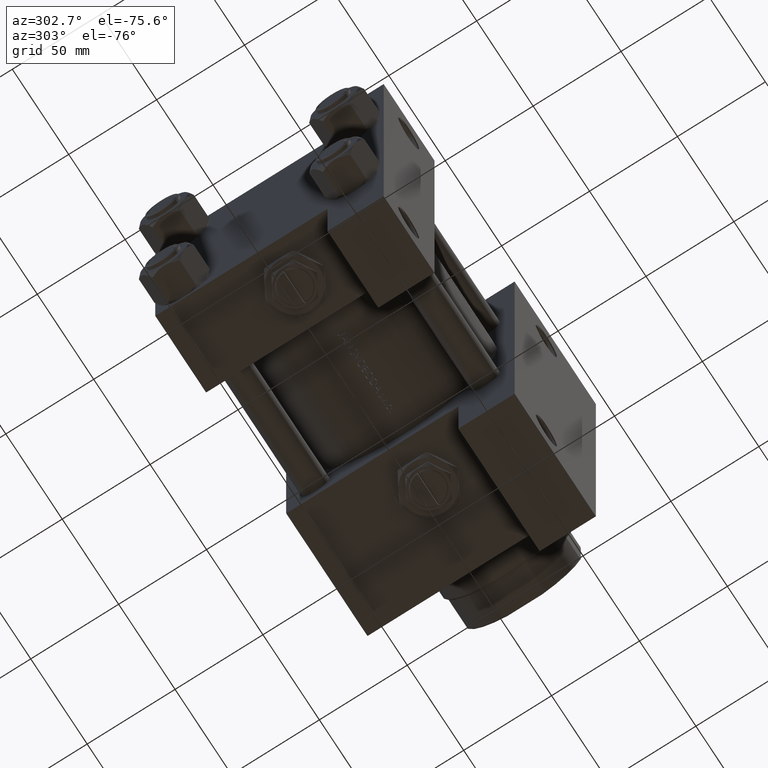
[diagram: clean part render]
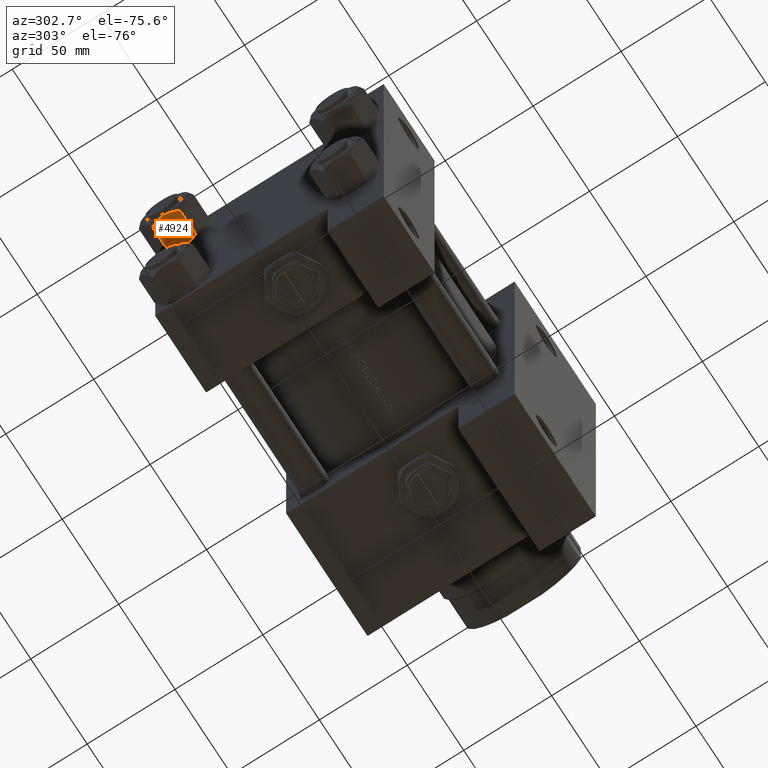
[diagram: same view with one face highlighted and labeled with its STEP entity id]
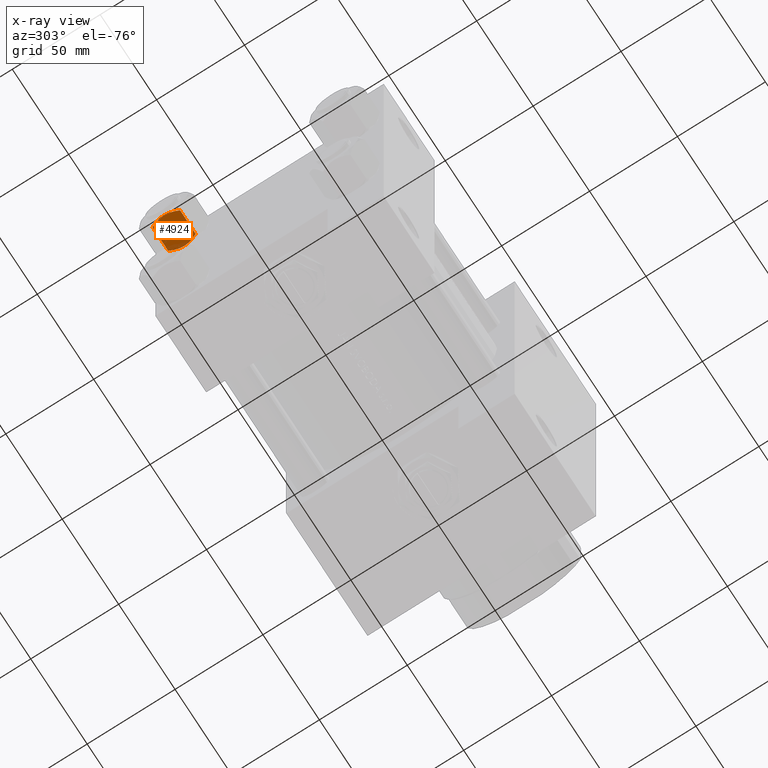
[diagram: x-ray of the same camera — body ghosted, the highlighted face saturated]
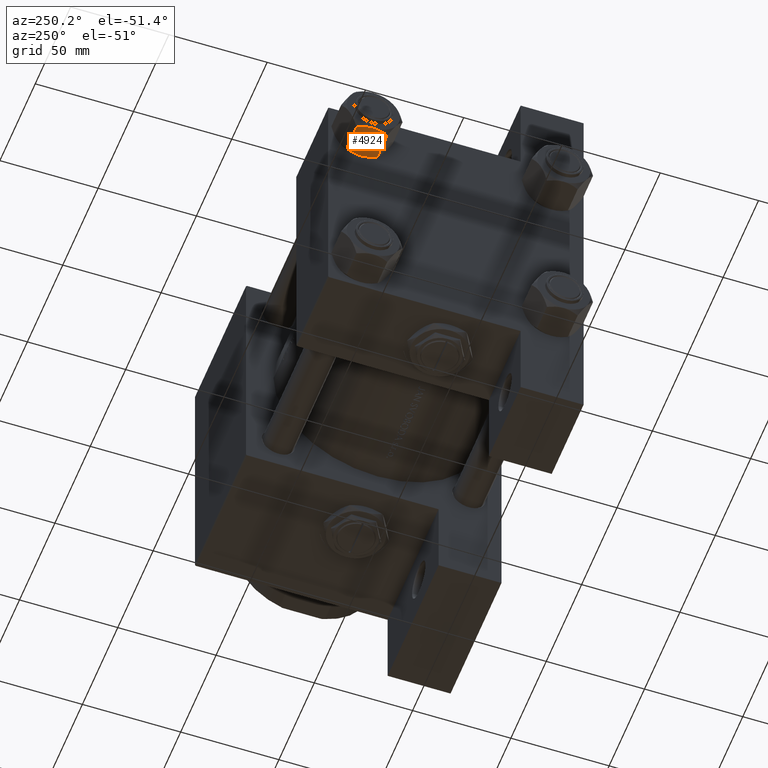
[diagram: same view with one face highlighted and labeled with its STEP entity id]
A machine part, auxiliary view. The second image highlights one B-rep face of the part: STEP entity #4924.
The next image is the same camera in x-ray: the body ghosted, the highlighted face saturated — about 8% of this face is hidden behind the body in this view.
A second angle (auxiliary view) of the same face is appended — the face is thin or edge-on in the first view.
In plain terms, the highlighted planar face has unit normal (0, 0, 1).
Its self-contained STEP definition (entity closure, byte-faithful):
#78 = EDGE_CURVE ( 'NONE', #7124, #12860, #6458, .T. ) ;
#681 = CARTESIAN_POINT ( 'NONE',  ( 1.333889873825129024, 13.52731680711293549, -17.93843358996559445 ) ) ;
#931 = CARTESIAN_POINT ( 'NONE',  ( 2.644243758052987392, 13.52731680711294082, -17.75917188019759152 ) ) ;
#1766 = CARTESIAN_POINT ( 'NONE',  ( -1.502314598737160017E-15, 13.52731680711293727, -18.00000000000000000 ) ) ;
#2025 = CARTESIAN_POINT ( 'NONE',  ( -1.335584685993415732, 13.52731680711294260, -18.00000000000000000 ) ) ;
#2133 = CARTESIAN_POINT ( 'NONE',  ( 7.030203932307577119, 13.52731680711294260, -16.29099812210860065 ) ) ;
#2485 = CARTESIAN_POINT ( 'NONE',  ( -1.502314598737160017E-15, 13.52731680711293727, 0.000000000000000000 ) ) ;
#2889 = CARTESIAN_POINT ( 'NONE',  ( -7.809999999999996945, 13.52731680711293727, -16.00000000000000000 ) ) ;
#3124 = CARTESIAN_POINT ( 'NONE',  ( -7.809999999999996945, 13.52731680711293727, -18.00000000000000000 ) ) ;
#3727 = LINE ( 'NONE', #26005, #30899 ) ;
#3951 = CARTESIAN_POINT ( 'NONE',  ( -7.809999999999996945, 13.52731680711293727, -1.999999999999998224 ) ) ;
#4924 = ADVANCED_FACE ( 'NONE', ( #44498 ), #48304, .F. ) ;
#5030 = VERTEX_POINT ( 'NONE', #20301 ) ;
#5092 = VERTEX_POINT ( 'NONE', #26118 ) ;
#5315 = CARTESIAN_POINT ( 'NONE',  ( -4.553769687922301301, 13.52731680711294082, -17.26727080048547691 ) ) ;
#6458 = B_SPLINE_CURVE_WITH_KNOTS ( 'NONE', 3,
 ( #49166, #26109, #22553, #10638, #41567, #49660, #33725, #49920 ),
 .UNSPECIFIED., .F., .F.,
 ( 4, 2, 2, 4 ),
 ( 0.01980594295952731523, 0.02179054093496185160, 0.02377513891039638796, 0.02774433486126545723 ),
 .UNSPECIFIED. ) ;
#7124 = VERTEX_POINT ( 'NONE', #17322 ) ;
#7707 = CARTESIAN_POINT ( 'NONE',  ( 7.622943475354636789, 13.52731680711293727, -16.00000000000000000 ) ) ;
#8346 = VECTOR ( 'NONE', #22684, 1000.000000000000000 ) ;
#8580 = CARTESIAN_POINT ( 'NONE',  ( -1.502314598737160017E-15, 13.52731680711293727, 0.000000000000000000 ) ) ;
#9335 = CARTESIAN_POINT ( 'NONE',  ( -5.184073258379393145, 13.52731680711294082, -0.9481437906500895796 ) ) ;
#10080 = CARTESIAN_POINT ( 'NONE',  ( -3.287826776903149284, 13.52731680711293727, -0.3804584453753455109 ) ) ;
#10638 = CARTESIAN_POINT ( 'NONE',  ( 5.189513245496312877, 13.52731680711294260, -0.9501108431732627757 ) ) ;
#11221 = B_SPLINE_CURVE_WITH_KNOTS ( 'NONE', 3,
 ( #2485, #33164, #17448, #21737, #13893, #37194, #10080, #24805, #9335, #28872, #29366, #28356 ),
 .UNSPECIFIED., .F., .F.,
 ( 4, 2, 2, 2, 2, 4 ),
 ( 0.02774433486126545723, 0.02873404020403549225, 0.02972374554680552727, 0.03170315623234559732, 0.03368256691788566737, 0.03566197760342573742 ),
 .UNSPECIFIED. ) ;
#11253 = VERTEX_POINT ( 'NONE', #14808 ) ;
#11431 = LINE ( 'NONE', #46899, #45692 ) ;
#11529 = LINE ( 'NONE', #3951, #8346 ) ;
#11884 = ORIENTED_EDGE ( 'NONE', *, *, #27369, .T. ) ;
#12860 = VERTEX_POINT ( 'NONE', #8580 ) ;
#13163 = CARTESIAN_POINT ( 'NONE',  ( -2.638177715023103609, 13.52731680711293727, -17.79984593233010415 ) ) ;
#13335 = LINE ( 'NONE', #28819, #45035 ) ;
#13893 = CARTESIAN_POINT ( 'NONE',  ( -1.663410456966171624, 13.52731680711293727, -0.09804949135699883578 ) ) ;
#14808 = CARTESIAN_POINT ( 'NONE',  ( -7.622943475354626131, 13.52731680711293727, -2.000000000000000000 ) ) ;
#15474 = EDGE_CURVE ( 'NONE', #40257, #7124, #11529, .T. ) ;
#17322 = CARTESIAN_POINT ( 'NONE',  ( 7.622943475354622578, 13.52731680711293727, -2.000000000000000000 ) ) ;
#17448 = CARTESIAN_POINT ( 'NONE',  ( -0.6693083573771219097, 13.52731680711293727, -0.01249333081109054930 ) ) ;
#18245 = CARTESIAN_POINT ( 'NONE',  ( 7.810000000000000497, 13.52731680711293905, -1.999999999999998224 ) ) ;
#18766 = EDGE_CURVE ( 'NONE', #5030, #40257, #11431, .T. ) ;
#20175 = CARTESIAN_POINT ( 'NONE',  ( -1.502314598737160017E-15, 13.52731680711293727, -18.00000000000000000 ) ) ;
#20301 = CARTESIAN_POINT ( 'NONE',  ( 7.810000000000000497, 13.52731680711293905, -16.00000000000000000 ) ) ;
#20430 = CARTESIAN_POINT ( 'NONE',  ( 6.422751913021812697, 13.52731680711294260, -16.56349088907410660 ) ) ;
#20507 = CARTESIAN_POINT ( 'NONE',  ( -7.030888348548057998, 13.52731680711294082, -16.29066211644970608 ) ) ;
#21473 = EDGE_CURVE ( 'NONE', #44849, #5030, #37270, .T. ) ;
#21737 = CARTESIAN_POINT ( 'NONE',  ( -1.333889873825132577, 13.52731680711293549, -0.06156641003440275345 ) ) ;
#21757 = EDGE_CURVE ( 'NONE', #32074, #44849, #34637, .T. ) ;
#22093 = ORIENTED_EDGE ( 'NONE', *, *, #36698, .F. ) ;
#22553 = CARTESIAN_POINT ( 'NONE',  ( 6.427364677720451169, 13.52731680711293727, -1.438506937155140886 ) ) ;
#22626 = ORIENTED_EDGE ( 'NONE', *, *, #33333, .F. ) ;
#22684 = DIRECTION ( 'NONE',  ( -1.000000000000000000, -1.110578409716265846E-16, 0.000000000000000000 ) ) ;
#22733 = ORIENTED_EDGE ( 'NONE', *, *, #49971, .F. ) ;
#22977 = VERTEX_POINT ( 'NONE', #26996 ) ;
#23739 = CARTESIAN_POINT ( 'NONE',  ( 4.557734399832408023, 13.52731680711293905, -17.26585298258848411 ) ) ;
#24805 = CARTESIAN_POINT ( 'NONE',  ( -4.557734399832406247, 13.52731680711293727, -0.7341470174115212188 ) ) ;
#26005 = CARTESIAN_POINT ( 'NONE',  ( -7.809999999999996945, 13.52731680711293727, -1.999999999999998224 ) ) ;
#26067 = VERTEX_POINT ( 'NONE', #2889 ) ;
#26109 = CARTESIAN_POINT ( 'NONE',  ( 7.030888348548042899, 13.52731680711293905, -1.709337883550297477 ) ) ;
#26110 = EDGE_CURVE ( 'NONE', #22977, #32074, #35551, .T. ) ;
#26114 = CARTESIAN_POINT ( 'NONE',  ( -7.809999999999996945, 13.52731680711293727, -16.00000000000000000 ) ) ;
#26118 = CARTESIAN_POINT ( 'NONE',  ( -7.809999999999996945, 13.52731680711293727, -1.999999999999998224 ) ) ;
#26184 = DIRECTION ( 'NONE',  ( 1.000000000000000000, 1.110578409716265846E-16, 0.000000000000000000 ) ) ;
#26376 = ORIENTED_EDGE ( 'NONE', *, *, #78, .F. ) ;
#26996 = CARTESIAN_POINT ( 'NONE',  ( -7.622943475354640341, 13.52731680711293727, -16.00000000000000000 ) ) ;
#27369 = EDGE_CURVE ( 'NONE', #26067, #5092, #13335, .T. ) ;
#28356 = CARTESIAN_POINT ( 'NONE',  ( -7.622943475354626131, 13.52731680711293727, -2.000000000000000000 ) ) ;
#28819 = CARTESIAN_POINT ( 'NONE',  ( -7.809999999999996945, 13.52731680711293727, -18.00000000000000000 ) ) ;
#28872 = CARTESIAN_POINT ( 'NONE',  ( -6.422751913021810033, 13.52731680711293905, -1.436509110925900723 ) ) ;
#29182 = DIRECTION ( 'NONE',  ( 1.000000000000000000, 1.110578409716265846E-16, 0.000000000000000000 ) ) ;
#29246 = CARTESIAN_POINT ( 'NONE',  ( 7.622943475354636789, 13.52731680711293727, -16.00000000000000000 ) ) ;
#29366 = CARTESIAN_POINT ( 'NONE',  ( -7.030203932307568238, 13.52731680711293905, -1.709001877891396015 ) ) ;
#29562 = DIRECTION ( 'NONE',  ( -0.000000000000000000, -0.000000000000000000, 1.000000000000000000 ) ) ;
#29612 = VECTOR ( 'NONE', #29182, 1000.000000000000000 ) ;
#30899 = VECTOR ( 'NONE', #49066, 1000.000000000000000 ) ;
#32074 = VERTEX_POINT ( 'NONE', #36642 ) ;
#33054 = CARTESIAN_POINT ( 'NONE',  ( 0.3330234424833821150, 13.52731680711293905, -17.99999999999999645 ) ) ;
#33164 = CARTESIAN_POINT ( 'NONE',  ( -0.3330234424833855567, 13.52731680711294082, -9.590671717444693935E-15 ) ) ;
#33333 = EDGE_CURVE ( 'NONE', #11253, #5092, #3727, .T. ) ;
#33457 = ORIENTED_EDGE ( 'NONE', *, *, #21757, .F. ) ;
#33725 = CARTESIAN_POINT ( 'NONE',  ( 1.335584685993407295, 13.52731680711293372, -9.301551138115220827E-15 ) ) ;
#34637 = B_SPLINE_CURVE_WITH_KNOTS ( 'NONE', 3,
 ( #20175, #33054, #44685, #681, #39194, #931, #43748, #23739, #39960, #20430, #2133, #29246 ),
 .UNSPECIFIED., .F., .F.,
 ( 4, 2, 2, 2, 2, 4 ),
 ( 0.02774433486126544682, 0.02873404020403548184, 0.02972374554680552033, 0.03170315623234559038, 0.03368256691788566737, 0.03566197760342573742 ),
 .UNSPECIFIED. ) ;
#34759 = DIRECTION ( 'NONE',  ( -0.000000000000000000, -0.000000000000000000, 1.000000000000000000 ) ) ;
#35280 = VECTOR ( 'NONE', #26184, 1000.000000000000000 ) ;
#35551 = B_SPLINE_CURVE_WITH_KNOTS ( 'NONE', 3,
 ( #43827, #20507, #47126, #40043, #5315, #13163, #2025, #1766 ),
 .UNSPECIFIED., .F., .F.,
 ( 4, 2, 2, 4 ),
 ( 0.01980594295952729095, 0.02179054093496183078, 0.02377513891039637062, 0.02774433486126544682 ),
 .UNSPECIFIED. ) ;
#35969 = ORIENTED_EDGE ( 'NONE', *, *, #15474, .F. ) ;
#36642 = CARTESIAN_POINT ( 'NONE',  ( -1.502314598737160017E-15, 13.52731680711293727, -18.00000000000000000 ) ) ;
#36698 = EDGE_CURVE ( 'NONE', #12860, #11253, #11221, .T. ) ;
#37194 = CARTESIAN_POINT ( 'NONE',  ( -2.644243758052984727, 13.52731680711293194, -0.2408281198024062875 ) ) ;
#37270 = LINE ( 'NONE', #26114, #29612 ) ;
#38066 = AXIS2_PLACEMENT_3D ( 'NONE', #3124, #44751, #40709 ) ;
#39194 = CARTESIAN_POINT ( 'NONE',  ( 1.663410456966170736, 13.52731680711293905, -17.90195050864299731 ) ) ;
#39547 = ORIENTED_EDGE ( 'NONE', *, *, #21473, .F. ) ;
#39960 = CARTESIAN_POINT ( 'NONE',  ( 5.184073258379394034, 13.52731680711294260, -17.05185620934991420 ) ) ;
#40043 = CARTESIAN_POINT ( 'NONE',  ( -5.189513245496328864, 13.52731680711293905, -17.04988915682673678 ) ) ;
#40257 = VERTEX_POINT ( 'NONE', #18245 ) ;
#40709 = DIRECTION ( 'NONE',  ( 1.000000000000000000, 1.110578409716265846E-16, 0.000000000000000000 ) ) ;
#40900 = CARTESIAN_POINT ( 'NONE',  ( -7.809999999999996945, 13.52731680711293727, -16.00000000000000000 ) ) ;
#41567 = CARTESIAN_POINT ( 'NONE',  ( 4.553769687922293308, 13.52731680711294082, -0.7327291995145223114 ) ) ;
#42853 = EDGE_LOOP ( 'NONE', ( #22733, #11884, #22626, #22093, #26376, #35969, #47636, #39547, #33457, #46405 ) ) ;
#43748 = CARTESIAN_POINT ( 'NONE',  ( 3.287826776903149284, 13.52731680711293905, -17.61954155462466431 ) ) ;
#43827 = CARTESIAN_POINT ( 'NONE',  ( -7.622943475354640341, 13.52731680711293727, -16.00000000000000000 ) ) ;
#44498 = FACE_OUTER_BOUND ( 'NONE', #42853, .T. ) ;
#44685 = CARTESIAN_POINT ( 'NONE',  ( 0.6693083573771172468, 13.52731680711294082, -17.98750666918891383 ) ) ;
#44696 = LINE ( 'NONE', #40900, #35280 ) ;
#44751 = DIRECTION ( 'NONE',  ( 1.110578409716265846E-16, -1.000000000000000000, 0.000000000000000000 ) ) ;
#44849 = VERTEX_POINT ( 'NONE', #7707 ) ;
#45035 = VECTOR ( 'NONE', #29562, 1000.000000000000000 ) ;
#45692 = VECTOR ( 'NONE', #34759, 1000.000000000000000 ) ;
#46405 = ORIENTED_EDGE ( 'NONE', *, *, #26110, .F. ) ;
#46899 = CARTESIAN_POINT ( 'NONE',  ( 7.810000000000001386, 13.52731680711293905, -18.00000000000000000 ) ) ;
#47126 = CARTESIAN_POINT ( 'NONE',  ( -6.427364677720468045, 13.52731680711293727, -16.56149306284485689 ) ) ;
#47636 = ORIENTED_EDGE ( 'NONE', *, *, #18766, .F. ) ;
#48304 = PLANE ( 'NONE',  #38066 ) ;
#49066 = DIRECTION ( 'NONE',  ( -1.000000000000000000, -1.110578409716265846E-16, 0.000000000000000000 ) ) ;
#49166 = CARTESIAN_POINT ( 'NONE',  ( 7.622943475354622578, 13.52731680711293727, -2.000000000000000000 ) ) ;
#49660 = CARTESIAN_POINT ( 'NONE',  ( 2.638177715023099168, 13.52731680711294260, -0.2001540676698935206 ) ) ;
#49920 = CARTESIAN_POINT ( 'NONE',  ( -1.502314598737160017E-15, 13.52731680711293727, 0.000000000000000000 ) ) ;
#49971 = EDGE_CURVE ( 'NONE', #26067, #22977, #44696, .T. ) ;